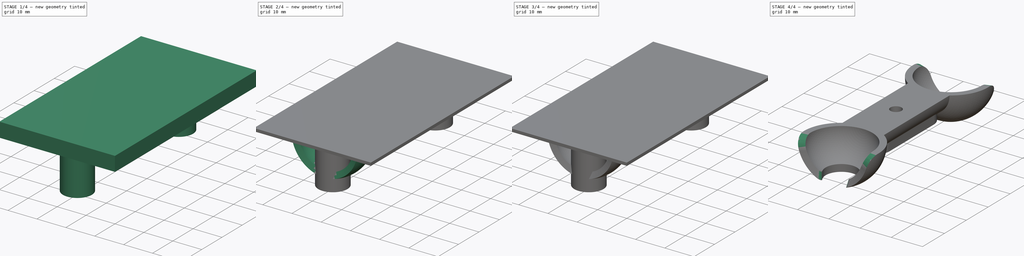
[diagram: build sequence overview — one tinted view per stage of 4, left to right]
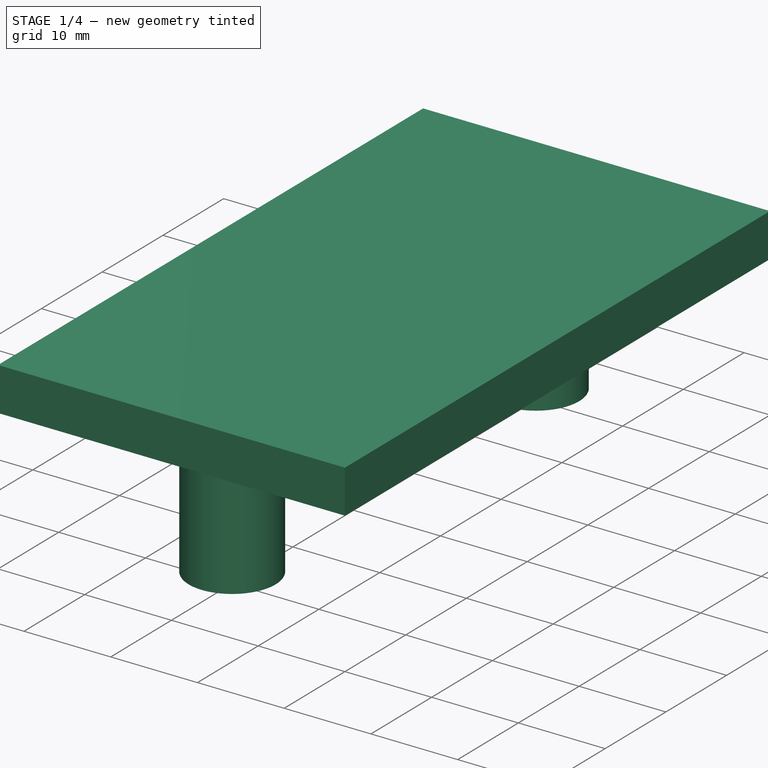
[diagram: stage 1 of 4 — iso view after this stage's code; geometry added in this stage tinted green]
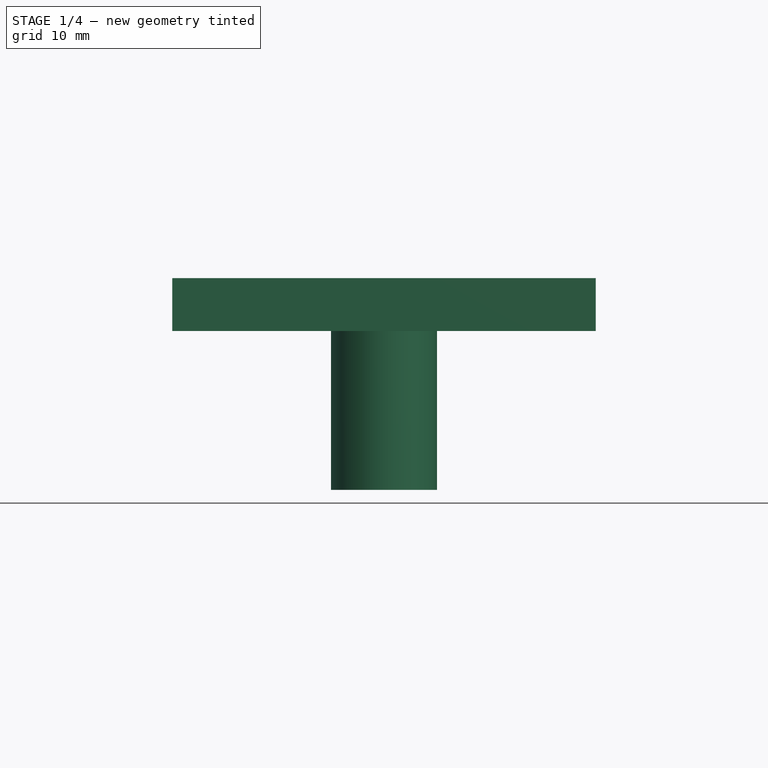
[diagram: stage 1 of 4 — front view after this stage's code; geometry added in this stage tinted green]
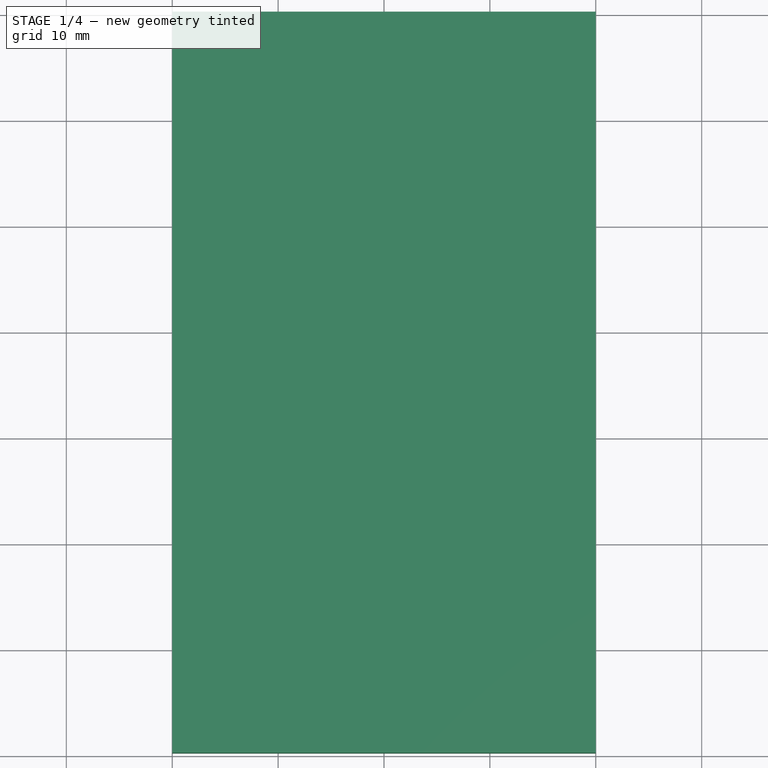
[diagram: stage 1 of 4 — top view after this stage's code; geometry added in this stage tinted green]
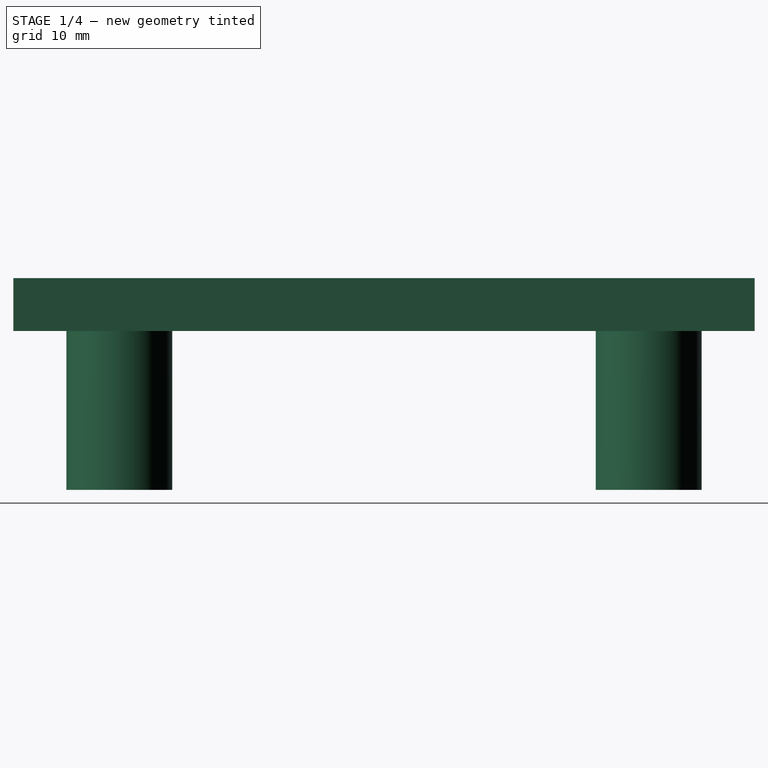
[diagram: stage 1 of 4 — right view after this stage's code; geometry added in this stage tinted green]
FCSTD DOCUMENT
Label: 30mmDogBone
objects: Sketcher::SketchObject×7, PartDesign::Pad×4, Part::Cut×2, PartDesign::Pocket×2, PartDesign::Fillet×2, PartDesign::Revolution×1, Part::MultiFuse×1
note: 23 computed .brp shape members not serialized (recipe doc carries the construction recipe); baked Part::Feature solids carry a one-line shape summary decoded from their .brp

FEATURE [Sketcher::SketchObject] Sketch002
  sketch-geometry (4):
    g0: LineSegment StartX=-20 StartY=0 StartZ=0 EndX=20 EndY=0 EndZ=0
    g1: LineSegment StartX=20 StartY=0 StartZ=0 EndX=20 EndY=70 EndZ=0
    g2: LineSegment StartX=20 StartY=70 StartZ=0 EndX=-20 EndY=70 EndZ=0
    g3: LineSegment StartX=-20 StartY=70 StartZ=0 EndX=-20 EndY=0 EndZ=0
  constraints (12):
    c: Coincident(g0,g1)
    c: Coincident(g1,g2)
    c: Coincident(g2,g3)
    c: Coincident(g3,g0)
    c: Horizontal(g0)
    c: Horizontal(g2)
    c: Vertical(g1)
    c: Vertical(g3)
    c: DistanceX(g0) = 40
    c: DistanceY(g3) = -70
    c: DistanceX(g0) = 20
    c: DistanceY(g0) = 0
FEATURE [PartDesign::Pad] Pad001
  Length = 5
  MirroredExtent = false
  Sketch = -> Sketch002
FEATURE [Sketcher::SketchObject] Sketch005
  sketch-geometry (4):
    g0: LineSegment StartX=-20 StartY=0 StartZ=0 EndX=20 EndY=0 EndZ=0
    g1: LineSegment StartX=20 StartY=0 StartZ=0 EndX=20 EndY=70 EndZ=0
    g2: LineSegment StartX=20 StartY=70 StartZ=0 EndX=-20 EndY=70 EndZ=0
    g3: LineSegment StartX=-20 StartY=70 StartZ=0 EndX=-20 EndY=0 EndZ=0
  constraints (12):
    c: Coincident(g0,g1)
    c: Coincident(g1,g2)
    c: Coincident(g2,g3)
    c: Coincident(g3,g0)
    c: Horizontal(g0)
    c: Horizontal(g2)
    c: Vertical(g1)
    c: Vertical(g3)
    c: DistanceX(g0) = 40
    c: DistanceY(g3) = -70
    c: DistanceX(g0) = 20
    c: DistanceY(g0) = 0
FEATURE [PartDesign::Pad] Pad002
  Length = 1
  MirroredExtent = false
  Sketch = -> Sketch005
FEATURE [Sketcher::SketchObject] Sketch006
  Placement = pos=(0,0,0) rot=(1,0,0;3.14159rad)
  Support = -> Pad002 [Face5]
  sketch-geometry (3):
    g0: Circle CenterX=0 CenterY=-10 CenterZ=0 NormalX=0 NormalY=0 NormalZ=1 Radius=5
    g1: Circle CenterX=0 CenterY=-60 CenterZ=0 NormalX=0 NormalY=0 NormalZ=1 Radius=5
    g2: LineSegment [constr] StartX=0 StartY=-10 StartZ=0 EndX=0 EndY=-60 EndZ=0
  constraints (8):
    c: Equal(g0,g1)
    c: Coincident(g2,g0)
    c: Coincident(g2,g1)
    c: Vertical(g2)
    c: DistanceY(g2) = -50
    c: DistanceX(g0) = 0
    c: DistanceY(g0) = -10
    c: Radius(g0) = 5
FEATURE [PartDesign::Pad] Pad003
  Length = 15
  MirroredExtent = false
  Sketch = -> Sketch006
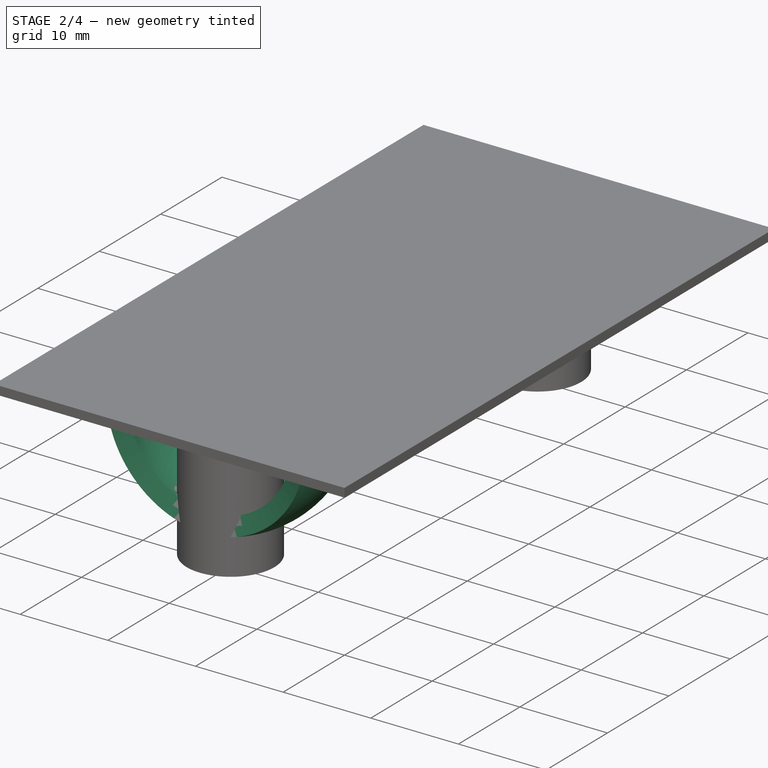
[diagram: stage 2 of 4 — iso view after this stage's code; geometry added in this stage tinted green]
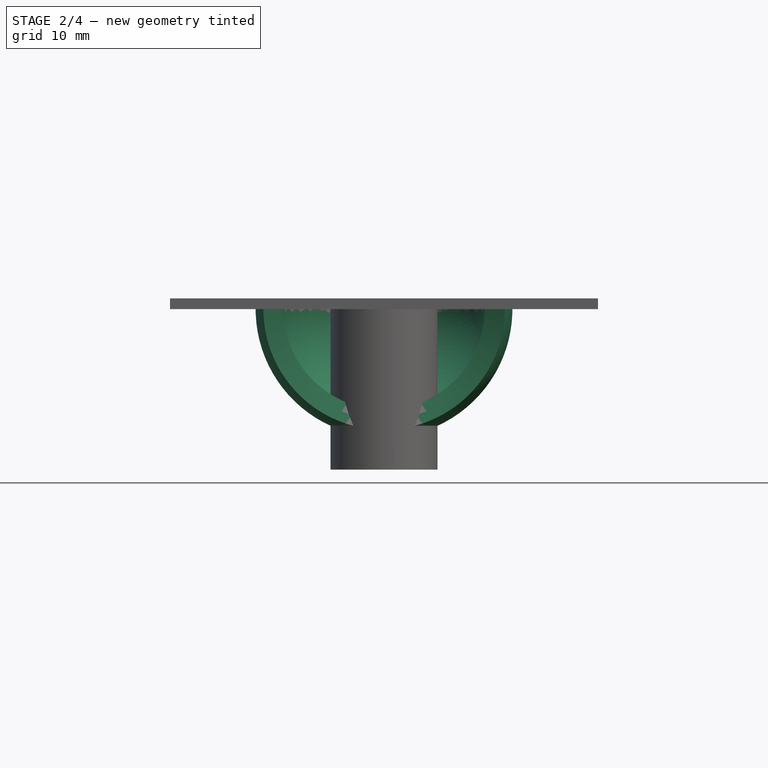
[diagram: stage 2 of 4 — front view after this stage's code; geometry added in this stage tinted green]
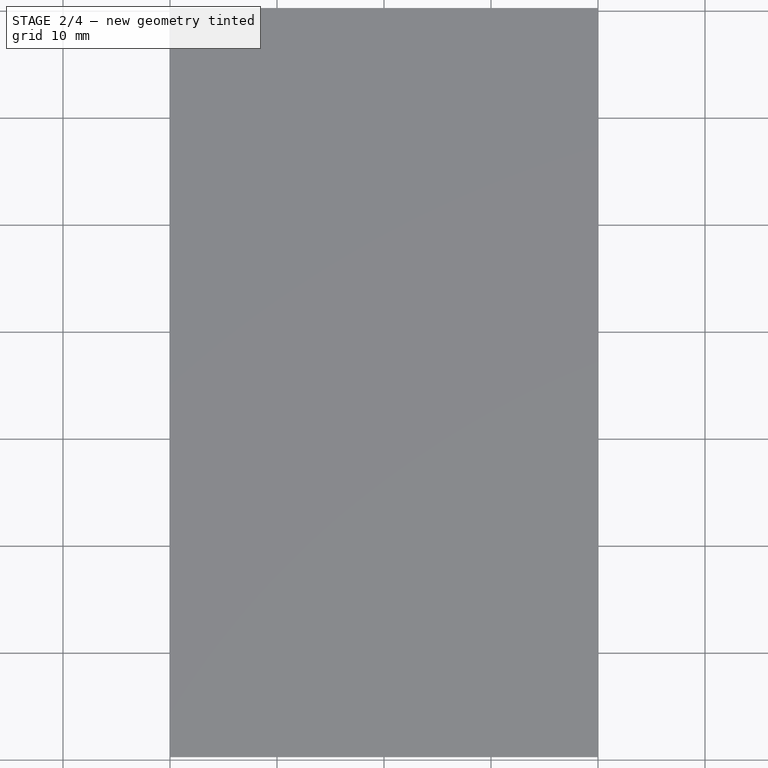
[diagram: stage 2 of 4 — top view after this stage's code; geometry added in this stage tinted green]
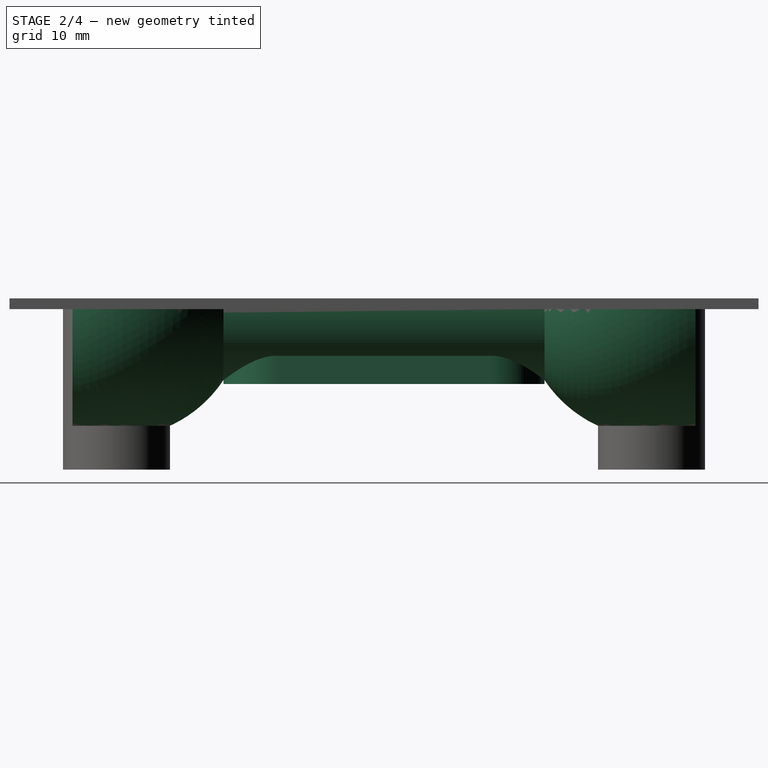
[diagram: stage 2 of 4 — right view after this stage's code; geometry added in this stage tinted green]
FEATURE [Sketcher::SketchObject] Sketch
  sketch-geometry (12):
    g0: ArcOfCircle CenterX=0 CenterY=9.99913 CenterZ=0 NormalX=0 NormalY=0 NormalZ=1 Radius=10 StartAngle=5.93412 EndAngle=7.85398
    g1: ArcOfCircle CenterX=0 CenterY=60.0009 CenterZ=0 NormalX=0 NormalY=0 NormalZ=1 Radius=10 StartAngle=4.71239 EndAngle=6.63225
    g2: LineSegment StartX=6.63325 StartY=50.0009 StartZ=0 EndX=6.63325 EndY=19.9991 EndZ=0
    g3: ArcOfCircle CenterX=0 CenterY=60.0009 CenterZ=0 NormalX=0 NormalY=0 NormalZ=1 Radius=12 StartAngle=5.29807 EndAngle=6.63225
    g4: ArcOfCircle CenterX=0 CenterY=9.99913 CenterZ=0 NormalX=0 NormalY=0 NormalZ=1 Radius=12 StartAngle=5.93412 EndAngle=7.2683
    g5: LineSegment StartX=9.39693 StartY=63.4211 StartZ=0 EndX=11.2763 EndY=64.1051 EndZ=0
    g6: LineSegment StartX=9.39693 StartY=6.57892 StartZ=0 EndX=11.2763 EndY=5.89488 EndZ=0
    g7: LineSegment StartX=0 StartY=50.0009 StartZ=0 EndX=0 EndY=35 EndZ=0
    g8: LineSegment StartX=0 StartY=35 StartZ=0 EndX=0 EndY=19.9991 EndZ=0
    g9: LineSegment [constr] StartX=0 StartY=19.9991 StartZ=0 EndX=0 EndY=9.99913 EndZ=0
    g10: LineSegment [constr] StartX=0 StartY=60.0009 StartZ=0 EndX=0 EndY=50.0009 EndZ=0
    g11: LineSegment [constr] StartX=0 StartY=50.0009 StartZ=0 EndX=6.63325 EndY=50.0009 EndZ=0
  constraints (35):
    c: Radius(g0) = 10
    c: Equal(g1,g0)
    c: Vertical(g2)
    c: Coincident(g3,g1)
    c: Coincident(g3,g2)
    c: Coincident(g4,g0)
    c: Coincident(g5,g3)
    c: Coincident(g6,g0)
    c: Coincident(g6,g4)
    c: Radius(g4) = 12
    c: Angle(g5) = 0.349066
    c: Angle(g6) = -0.349066
    c: Distance(g5) = 2
    c: Coincident(g5,g1)
    c: Distance(g6) = 2
    c: Coincident(g4,g2)
    c: Equal(g3,g4)
    c: Coincident(g7,g1)
    c: Vertical(g7)
    c: Coincident(g7,g8)
    c: Coincident(g8,g0)
    c: Vertical(g8)
    c: Equal(g8,g7)
    c: DistanceY(g1,g0) = -30.0017
    c: DistanceY(g7) = 35
    c: DistanceX(g0) = 0
    c: Coincident(g9,g0)
    c: Coincident(g9,g0)
    c: Vertical(g9)
    c: Coincident(g10,g1)
    c: Coincident(g10,g1)
    c: Vertical(g10)
    c: Coincident(g11,g1)
    c: Coincident(g11,g2)
    c: Horizontal(g11)
FEATURE [Sketcher::SketchObject] Sketch001
  Placement = pos=(0,0,-13) rot=(0,0,1;0rad)
  sketch-geometry (8):
    g0: ArcOfCircle CenterX=0 CenterY=25 CenterZ=0 NormalX=0 NormalY=0 NormalZ=1 Radius=5 StartAngle=3.14159 EndAngle=6.28319
    g1: LineSegment [constr] StartX=-5 StartY=25 StartZ=0 EndX=5 EndY=25 EndZ=0
    g2: LineSegment StartX=5 StartY=25 StartZ=0 EndX=5 EndY=45 EndZ=0
    g3: LineSegment [constr] StartX=5 StartY=45 StartZ=0 EndX=-5 EndY=45 EndZ=0
    g4: LineSegment StartX=-5 StartY=45 StartZ=0 EndX=-5 EndY=25 EndZ=0
    g5: ArcOfCircle CenterX=0 CenterY=45 CenterZ=0 NormalX=0 NormalY=0 NormalZ=1 Radius=5 StartAngle=0 EndAngle=3.14159
    g6: LineSegment [constr] StartX=0 StartY=45 StartZ=0 EndX=0 EndY=35 EndZ=0
    g7: LineSegment [constr] StartX=0 StartY=35 StartZ=0 EndX=0 EndY=25 EndZ=0
  constraints (23):
    c: Coincident(g1,g2)
    c: Coincident(g2,g3)
    c: Coincident(g3,g4)
    c: Coincident(g4,g1)
    c: Horizontal(g1)
    c: Horizontal(g3)
    c: Vertical(g4)
    c: Coincident(g1,g0)
    c: PointOnObject(g5,g3)
    c: Coincident(g5,g3)
    c: Coincident(g5,g2)
    c: Coincident(g1,g0)
    c: PointOnObject(g0,g1)
    c: DistanceX(g1) = 10
    c: DistanceY(g2,g0) = -20
    c: Coincident(g6,g5)
    c: Vertical(g6)
    c: Coincident(g6,g7)
    c: Coincident(g7,g0)
    c: Vertical(g7)
    c: Equal(g6,g7)
    c: DistanceX(g6) = 0
    c: DistanceY(g6) = 35
FEATURE [PartDesign::Pad] Pad
  Length = 7
  MirroredExtent = false
  Placement = pos=(0,0,6) rot=(0,0,1;0rad)
  Sketch = -> Sketch001
FEATURE [PartDesign::Revolution] Revolution
  Angle = 180
  Axis = (0,1,0)
  Base = (0,0,0)
  Sketch = -> Sketch
FEATURE [Part::Cut] Cut
  Base = -> Revolution
  Tool = -> Pad001
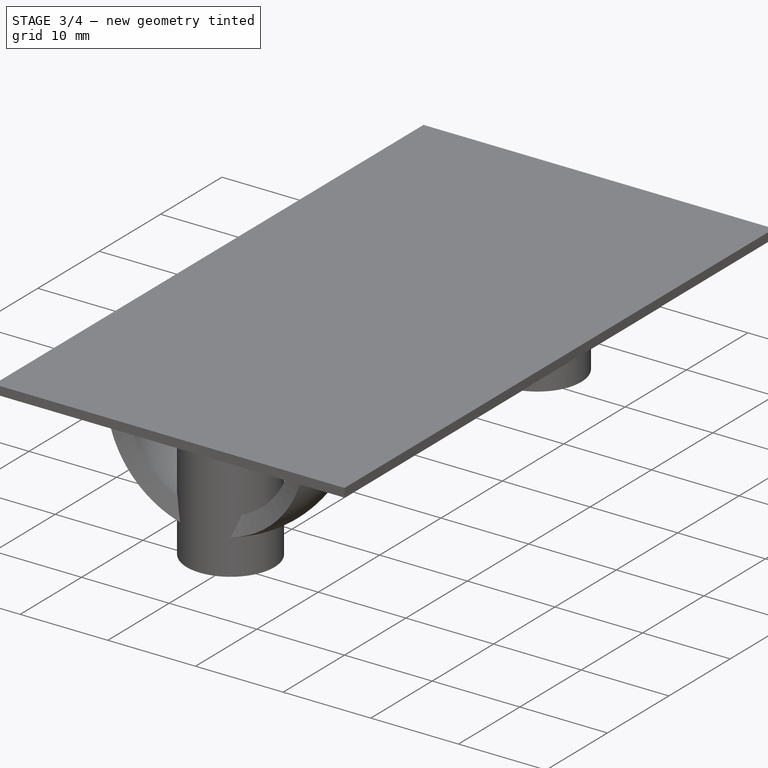
[diagram: stage 3 of 4 — iso view after this stage's code; geometry added in this stage tinted green]
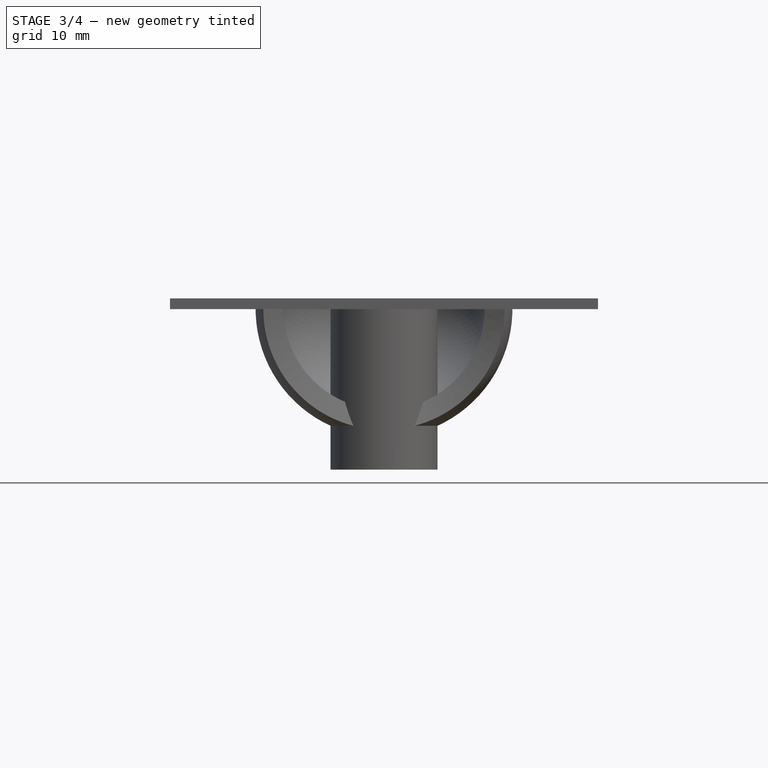
[diagram: stage 3 of 4 — front view after this stage's code; geometry added in this stage tinted green]
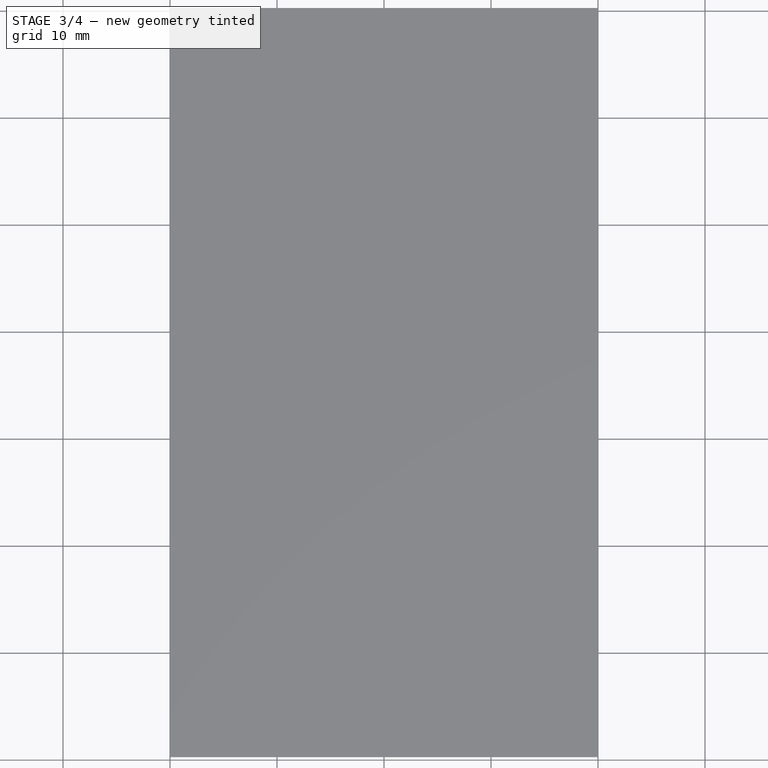
[diagram: stage 3 of 4 — top view after this stage's code; geometry added in this stage tinted green]
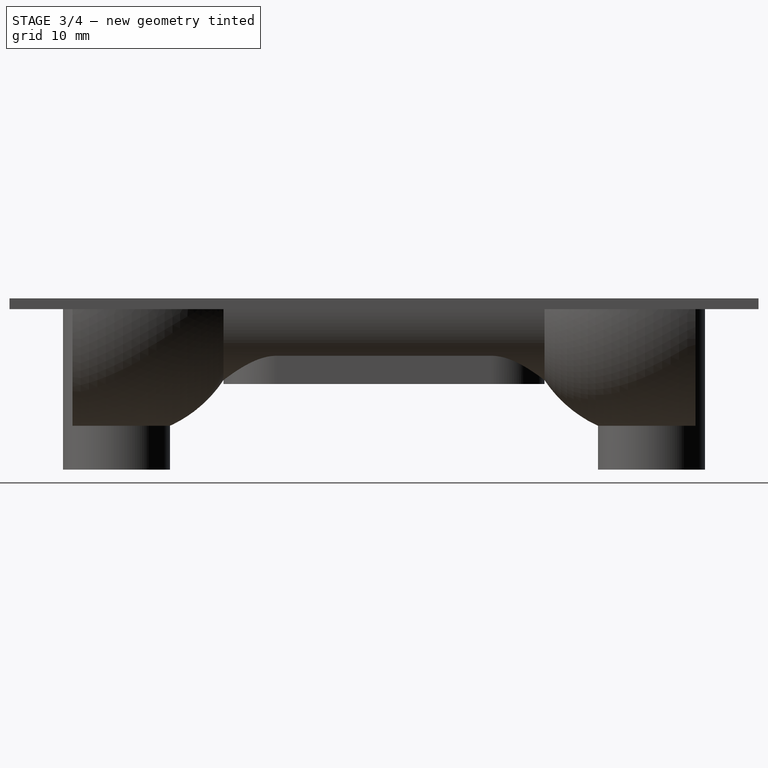
[diagram: stage 3 of 4 — right view after this stage's code; geometry added in this stage tinted green]
FEATURE [Part::MultiFuse] Fusion
  Shapes = -> [Pad,Cut]
FEATURE [Sketcher::SketchObject] Sketch003
  Placement = pos=(0,0,-7) rot=(1,0,0;3.14159rad)
  Support = -> Fusion [Face1]
  sketch-geometry (11):
    g0: LineSegment StartX=-3 StartY=-36.7321 StartZ=0 EndX=-3 EndY=-33.2679 EndZ=0
    g1: LineSegment StartX=-3 StartY=-33.2679 StartZ=0 EndX=0 EndY=-31.5359 EndZ=0
    g2: LineSegment StartX=0 StartY=-31.5359 StartZ=0 EndX=3 EndY=-33.2679 EndZ=0
    g3: LineSegment StartX=3 StartY=-33.2679 StartZ=0 EndX=3 EndY=-36.7321 EndZ=0
    g4: LineSegment StartX=3 StartY=-36.7321 StartZ=0 EndX=0 EndY=-38.4641 EndZ=0
    g5: LineSegment StartX=0 StartY=-38.4641 StartZ=0 EndX=-3 EndY=-36.7321 EndZ=0
    g6: LineSegment [constr] StartX=-3 StartY=-36.7321 StartZ=0 EndX=0 EndY=-35 EndZ=0
    g7: LineSegment [constr] StartX=0 StartY=-35 StartZ=0 EndX=3 EndY=-36.7321 EndZ=0
    g8: LineSegment [constr] StartX=0 StartY=-35 StartZ=0 EndX=-3 EndY=-33.2679 EndZ=0
    g9: LineSegment [constr] StartX=0 StartY=-35 StartZ=0 EndX=0 EndY=-38.4641 EndZ=0
    g10: LineSegment [constr] StartX=0 StartY=-35 StartZ=0 EndX=3 EndY=-33.2679 EndZ=0
  constraints (29):
    c: Vertical(g0)
    c: Coincident(g0,g1)
    c: Coincident(g1,g2)
    c: Coincident(g2,g3)
    c: Vertical(g3)
    c: Coincident(g3,g4)
    c: Coincident(g4,g5)
    c: Coincident(g5,g0)
    c: Equal(g5,g0)
    c: Equal(g0,g1)
    c: Equal(g1,g2)
    c: Equal(g2,g3)
    c: Equal(g3,g4)
    c: Coincident(g6,g0)
    c: Coincident(g6,g7)
    c: Coincident(g7,g3)
    c: Coincident(g8,g0)
    c: Coincident(g9,g6)
    c: Coincident(g9,g4)
    c: Vertical(g9)
    c: Equal(g6,g8)
    c: Equal(g8,g7)
    c: Equal(g7,g9)
    c: DistanceX(g0,g3) = 6
    c: Coincident(g10,g6)
    c: Coincident(g10,g2)
    c: Coincident(g6,g8)
    c: DistanceX(g6) = 0
    c: DistanceY(g6) = -35
FEATURE [PartDesign::Pocket] Pocket
  Length = 3
  Sketch = -> Sketch003
  Type = 0
FEATURE [Sketcher::SketchObject] Sketch004
  Placement = pos=(0,0,-4) rot=(1,0,0;3.14159rad)
  Support = -> Pocket [Face17]
  sketch-geometry (1):
    g0: Circle CenterX=0 CenterY=-35 CenterZ=0 NormalX=0 NormalY=0 NormalZ=1 Radius=1.8
  constraints (3):
    c: Radius(g0) = 1.8
    c: DistanceX(g0) = 0
    c: DistanceY(g0) = -35
FEATURE [PartDesign::Pocket] Pocket001
  Length = 5
  Sketch = -> Sketch004
  Type = 0
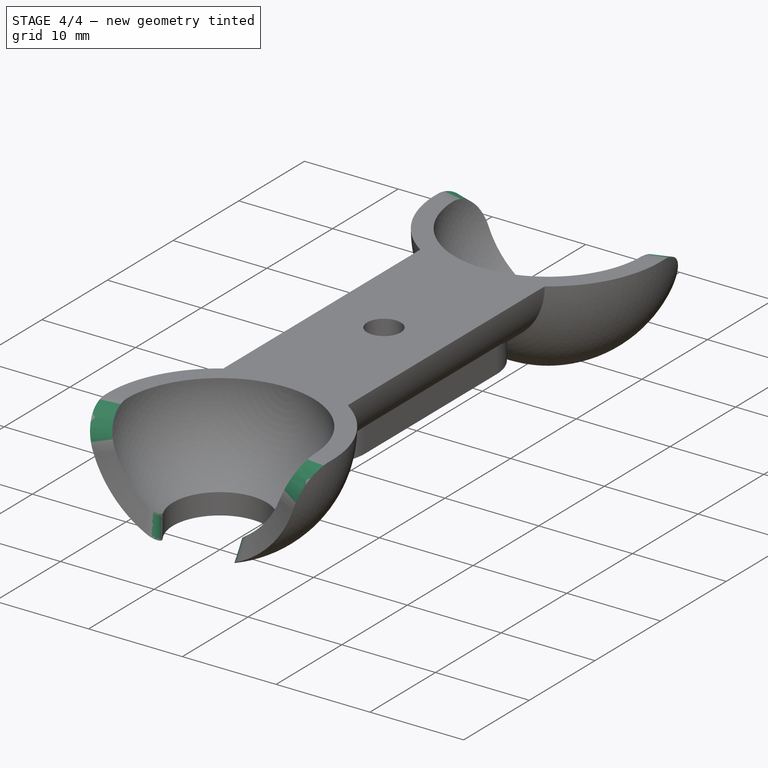
[diagram: stage 4 of 4 — iso view after this stage's code; geometry added in this stage tinted green]
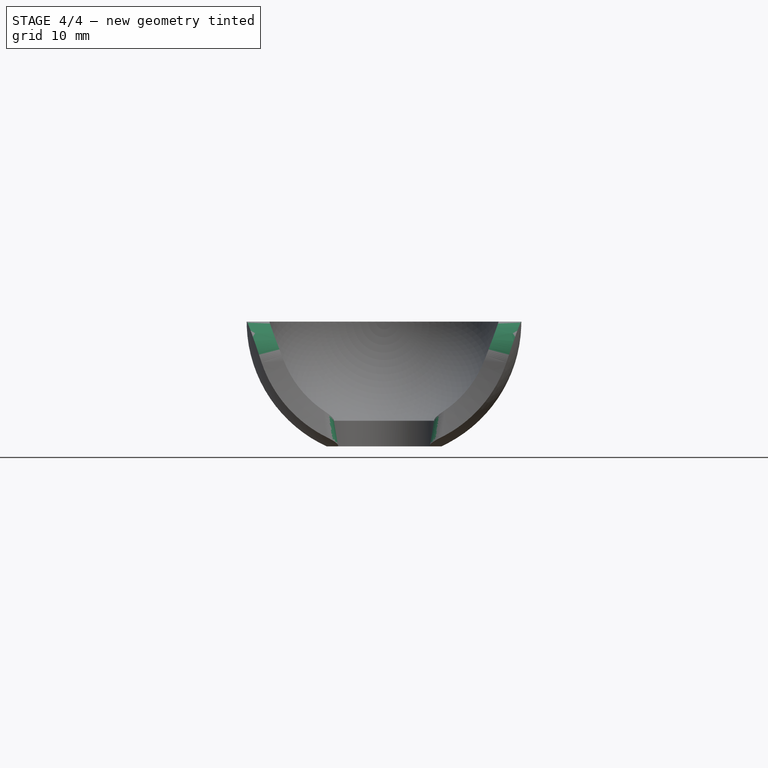
[diagram: stage 4 of 4 — front view after this stage's code; geometry added in this stage tinted green]
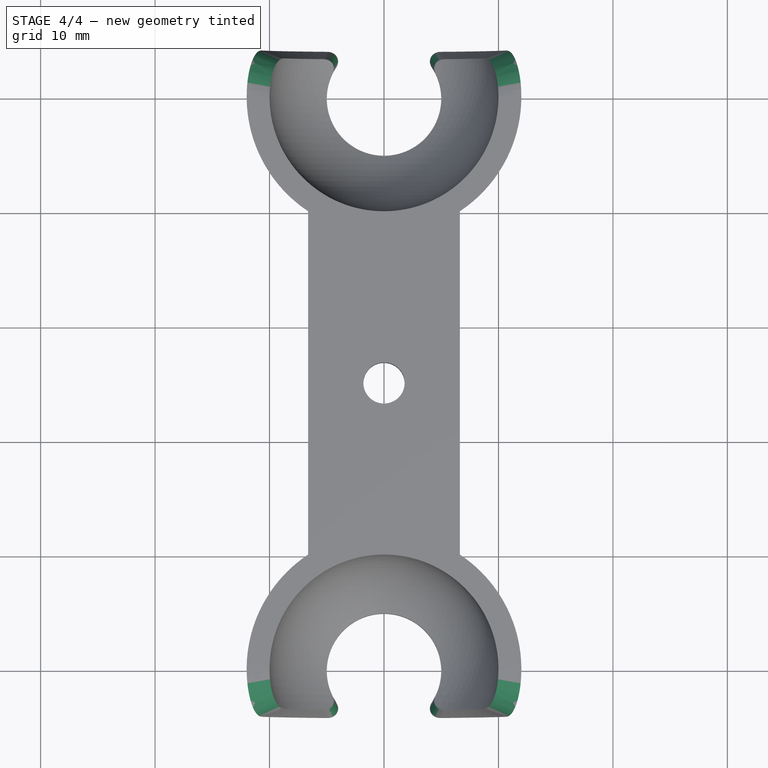
[diagram: stage 4 of 4 — top view after this stage's code; geometry added in this stage tinted green]
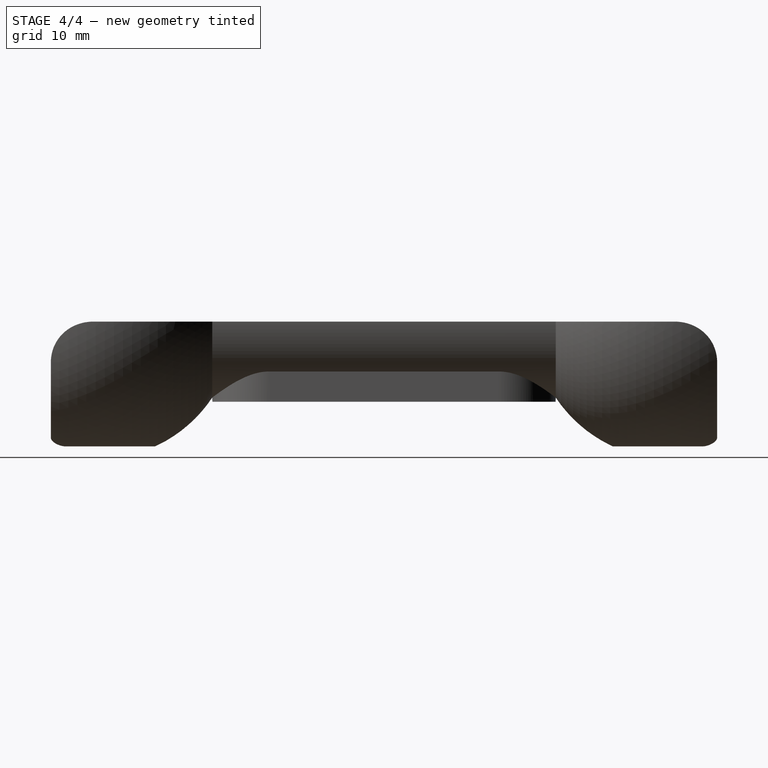
[diagram: stage 4 of 4 — right view after this stage's code; geometry added in this stage tinted green]
FEATURE [PartDesign::Fillet] Fillet
  Base = -> Pocket001 [Edge55,Edge47,Edge42,Edge51]
  Radius = 4
FEATURE [Part::Cut] Cut001
  Base = -> Fillet
  Tool = -> Pad003
FEATURE [PartDesign::Fillet] Fillet001
  Base = -> Cut001 [Edge71,Edge78,Edge97,Edge95]
  Radius = 1
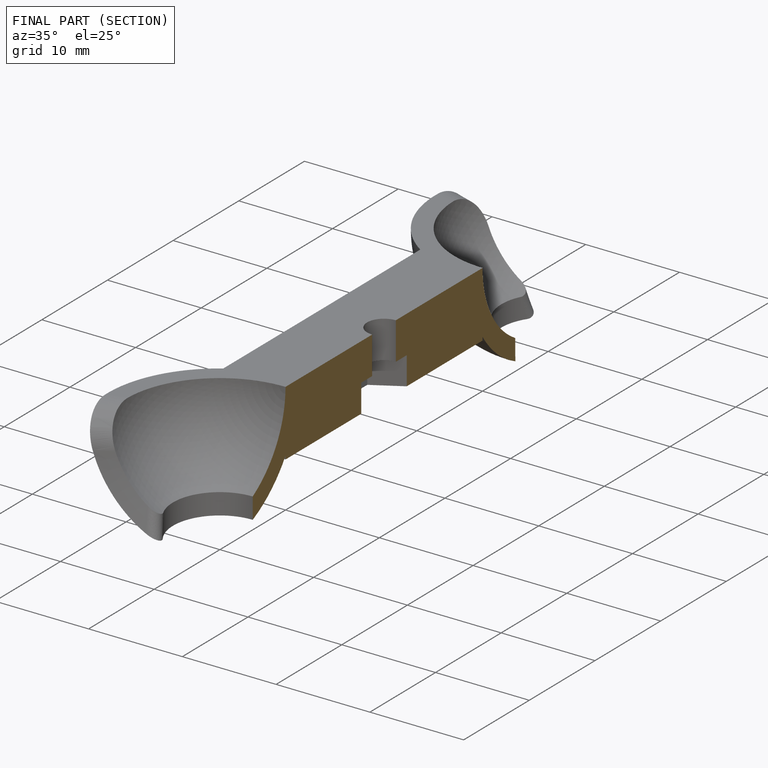
[diagram: finished part — half-section view (interior)]
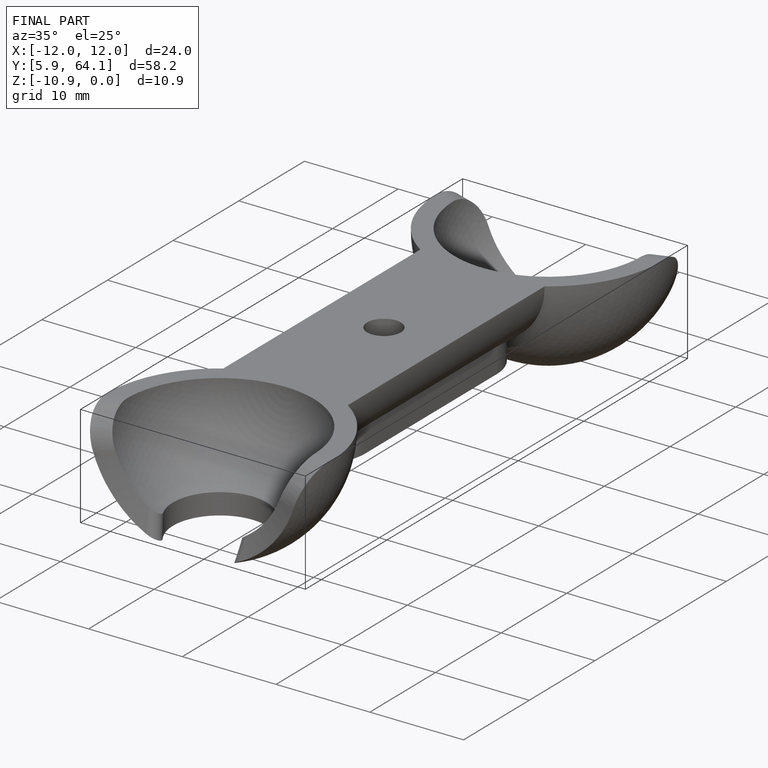
[diagram: finished part — iso view with bounding-box wireframe]
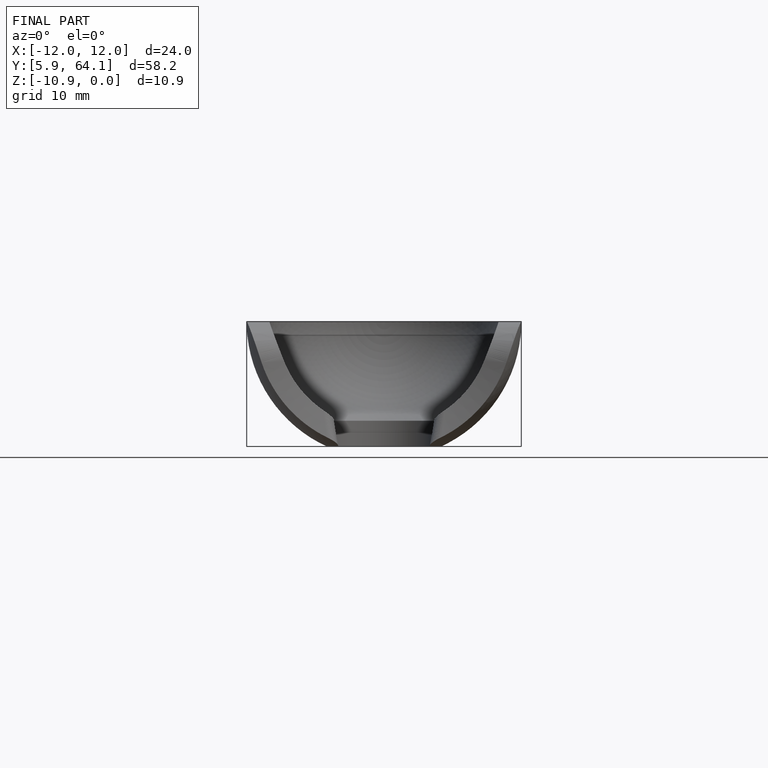
[diagram: finished part — front view with bounding-box wireframe]
